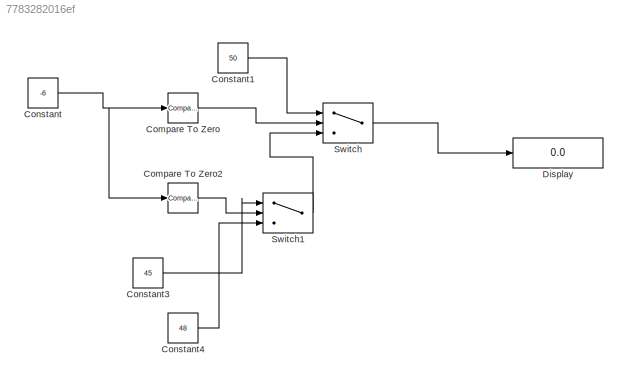
MODEL slx_7783282016ef
KIND model
CONFIG AbsTol = auto
CONFIG FixedStep = auto
CONFIG MaxStep = auto
CONFIG MinStep = auto
CONFIG RelTol = 1e-3
CONFIG SampleTimeConstraint = Unconstrained
CONFIG Solver = VariableStepAuto
CONFIG SolverMode = Auto
CONFIG SolverName = VariableStepAuto
CONFIG StartTime = 0.0
CONFIG StopTime = 10.0
BLOCK [Reference] Compare To Zero  REF=simulink/Logic and Bit
Operations/Compare
To Zero
  Ports = [1, 1]
  SourceBlock = simulink/Logic and Bit\nOperations/Compare\nTo Zero
  SourceType = Compare To Zero
BLOCK [Reference] Compare To Zero2  REF=simulink/Logic and Bit
Operations/Compare
To Zero
  Ports = [1, 1]
  SourceBlock = simulink/Logic and Bit\nOperations/Compare\nTo Zero
  SourceType = Compare To Zero
BLOCK [Constant] Constant
  Value = -6
BLOCK [Constant] Constant1
  Value = 50
BLOCK [Constant] Constant3
  Value = 45
BLOCK [Constant] Constant4
  Value = 48
BLOCK [Display] Display
  Decimation = 1
  Ports = [1]
BLOCK [Switch] Switch
  Criteria = u2 > Threshold
  InputSameDT = off
  SaturateOnIntegerOverflow = off
BLOCK [Switch] Switch1
  Criteria = u2 > Threshold
  InputSameDT = off
  SaturateOnIntegerOverflow = off
LINE Compare To Zero2:1 -> Switch1:2
LINE Compare To Zero:1 -> Switch:2
LINE Constant1:1 -> Switch:1
LINE Constant3:1 -> Switch1:1
LINE Constant4:1 -> Switch1:3
NET Constant:1 -> Compare To Zero2:1, Compare To Zero:1
LINE Switch1:1 -> Switch:3
LINE Switch:1 -> Display:1
note: NET lines group one-source signal fan-out (src -> all destinations, sorted); 1:1 wires keep LINE
